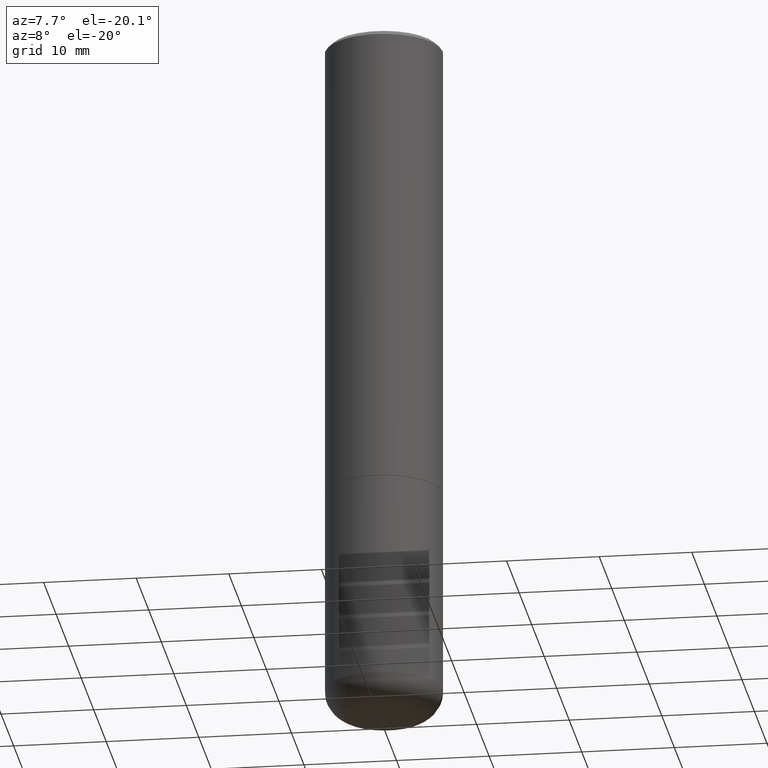
[diagram: clean part render]
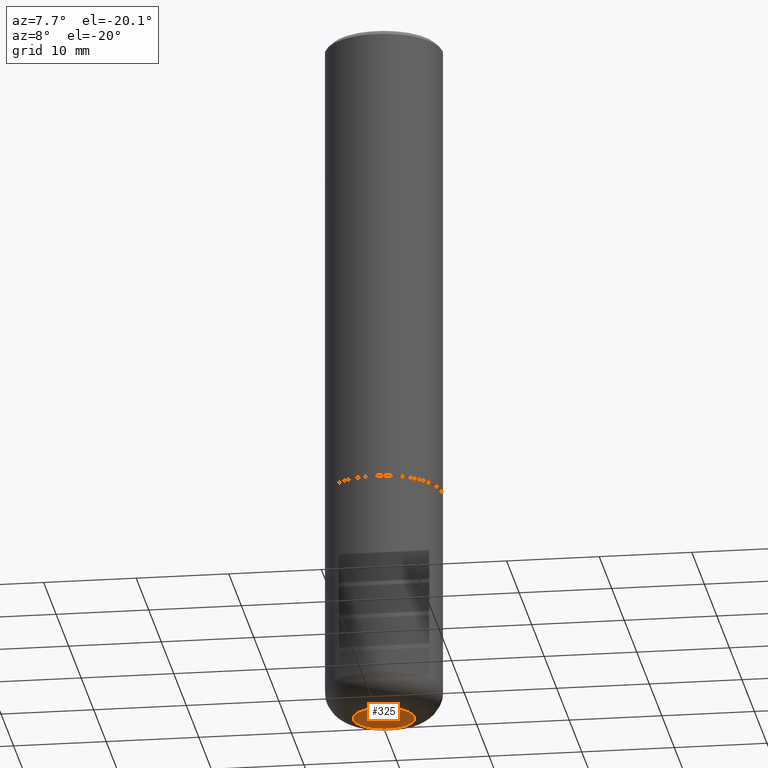
[diagram: same view with one face highlighted and labeled with its STEP entity id]
A machine part, auxiliary view. The second image highlights one B-rep face of the part: STEP entity #325.
In plain terms, the highlighted planar face has unit normal (0, -0, -1).
Its self-contained STEP definition (entity closure, byte-faithful):
#50 = CARTESIAN_POINT ( 'NONE',  ( -0.1300000000000000044, -8.914923938254659640E-15, -3.000000000000000444 ) ) ;
#56 = DIRECTION ( 'NONE',  ( 1.000000000000000000, -6.982962677686273810E-15, 0.000000000000000000 ) ) ;
#119 = DIRECTION ( 'NONE',  ( 1.000000000000000000, -6.982962677686273810E-15, 0.000000000000000000 ) ) ;
#120 = DIRECTION ( 'NONE',  ( -1.000000000000000000, 6.982962677686265922E-15, -4.876176775795935793E-29 ) ) ;
#124 = AXIS2_PLACEMENT_3D ( 'NONE', #209, #311, #120 ) ;
#169 = DIRECTION ( 'NONE',  ( -2.445468806185136597E-29, 3.491481338843145583E-15, 1.000000000000000000 ) ) ;
#173 = DIRECTION ( 'NONE',  ( -2.445468806185136597E-29, 3.491481338843145583E-15, 1.000000000000000000 ) ) ;
#174 = FACE_OUTER_BOUND ( 'NONE', #314, .T. ) ;
#175 = CARTESIAN_POINT ( 'NONE',  ( 7.336406418555409790E-29, -1.047444401652943635E-14, -3.000000000000000444 ) ) ;
#182 = AXIS2_PLACEMENT_3D ( 'NONE', #175, #169, #119 ) ;
#201 = CARTESIAN_POINT ( 'NONE',  ( 7.336406418555409790E-29, -1.047444401652943635E-14, -3.000000000000000444 ) ) ;
#209 = CARTESIAN_POINT ( 'NONE',  ( 7.336406418555409790E-29, -1.047444401652943635E-14, -3.000000000000000444 ) ) ;
#218 = VERTEX_POINT ( 'NONE', #312 ) ;
#252 = EDGE_CURVE ( 'NONE', #218, #320, #269, .T. ) ;
#269 = CIRCLE ( 'NONE', #376, 0.1300000000000000044 ) ;
#286 = ORIENTED_EDGE ( 'NONE', *, *, #252, .F. ) ;
#306 = CIRCLE ( 'NONE', #182, 0.1300000000000000044 ) ;
#309 = PLANE ( 'NONE',  #124 ) ;
#311 = DIRECTION ( 'NONE',  ( 2.438088387897960049E-29, -3.491481338843145188E-15, -1.000000000000000000 ) ) ;
#312 = CARTESIAN_POINT ( 'NONE',  ( 0.1300000000000000044, -1.138222916462865292E-14, -3.000000000000000444 ) ) ;
#314 = EDGE_LOOP ( 'NONE', ( #286, #356 ) ) ;
#320 = VERTEX_POINT ( 'NONE', #50 ) ;
#325 = ADVANCED_FACE ( 'NONE', ( #174 ), #309, .T. ) ;
#348 = EDGE_CURVE ( 'NONE', #320, #218, #306, .T. ) ;
#356 = ORIENTED_EDGE ( 'NONE', *, *, #348, .F. ) ;
#376 = AXIS2_PLACEMENT_3D ( 'NONE', #201, #173, #56 ) ;